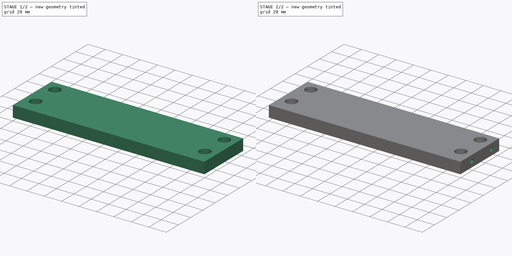
[diagram: build sequence overview — one tinted view per stage of 2, left to right]
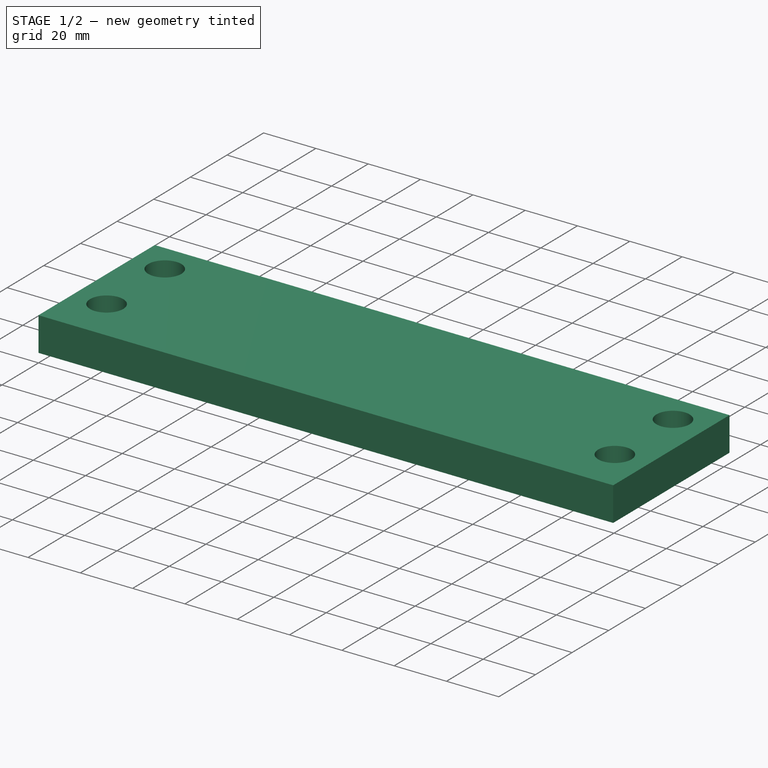
[diagram: stage 1 of 2 — iso view after this stage's code; geometry added in this stage tinted green]
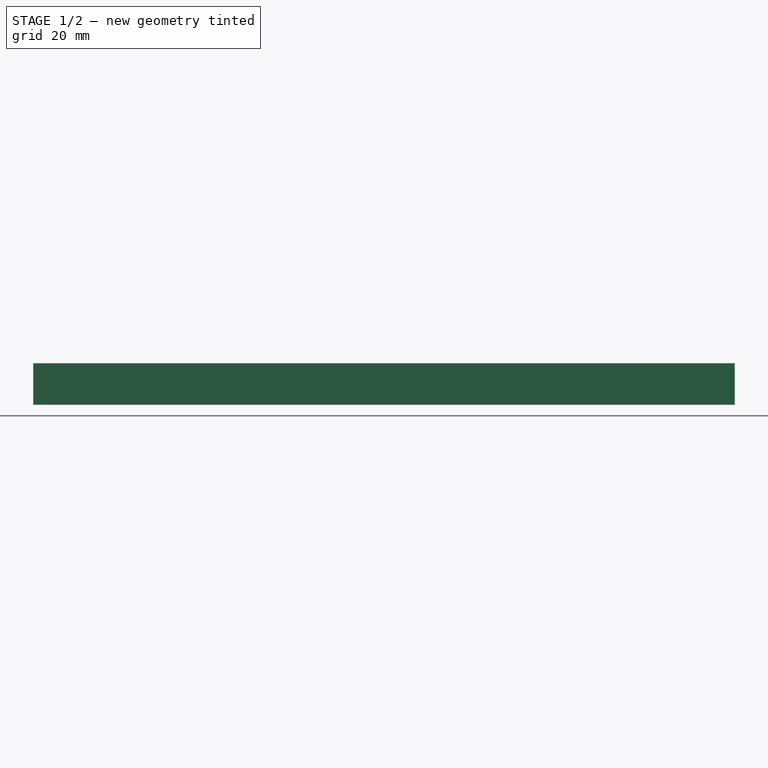
[diagram: stage 1 of 2 — front view after this stage's code; geometry added in this stage tinted green]
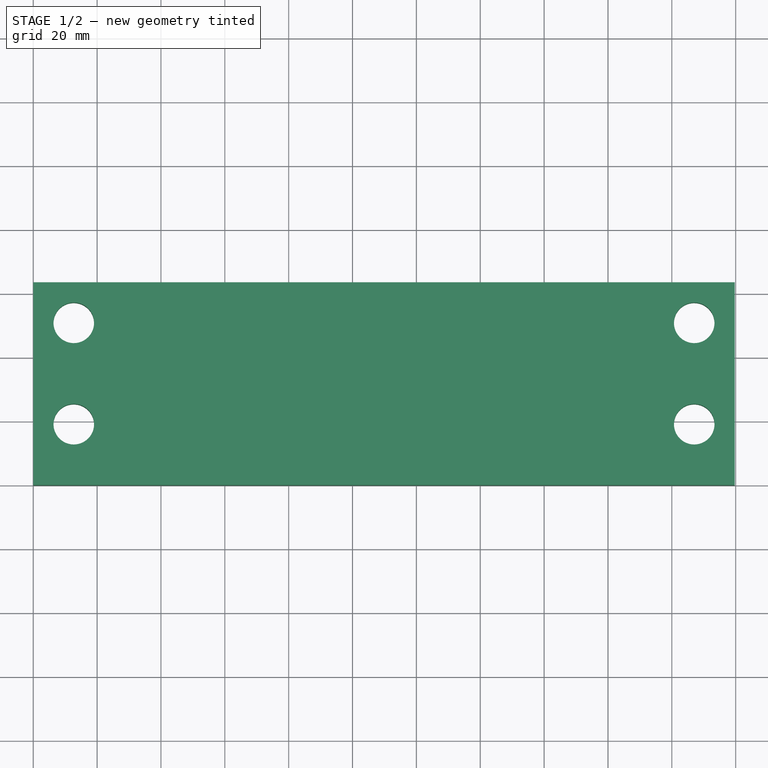
[diagram: stage 1 of 2 — top view after this stage's code; geometry added in this stage tinted green]
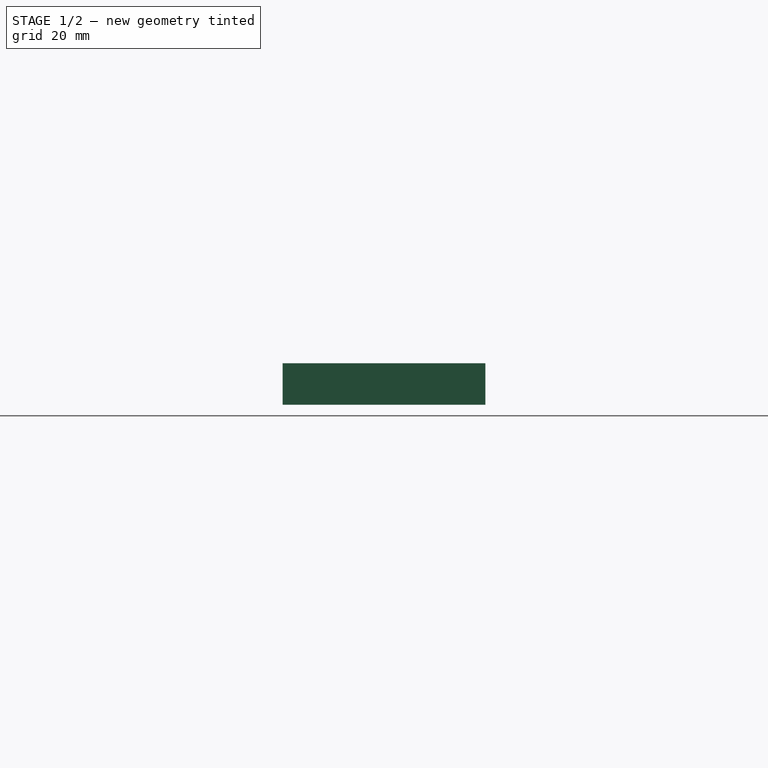
[diagram: stage 1 of 2 — right view after this stage's code; geometry added in this stage tinted green]
FCSTD DOCUMENT  (FreeCAD 0.16R6265 (Git))
Label: support
License: All rights reserved
LicenseURL: http://en.wikipedia.org/wiki/All_rights_reserved
objects: Sketcher::SketchObject×3, PartDesign::Pocket×2, PartDesign::Pad×1, Part::Part2DObjectPython×1
note: 10 computed .brp shape members not serialized (recipe doc carries the construction recipe); baked Part::Feature solids carry a one-line shape summary decoded from their .brp

FEATURE [Sketcher::SketchObject] Sketch
  sketch-geometry (8):
    g0: LineSegment StartX=0 StartY=0 StartZ=0 EndX=219.71 EndY=0 EndZ=0
    g1: LineSegment StartX=219.71 StartY=0 StartZ=0 EndX=219.71 EndY=63.5 EndZ=0
    g2: LineSegment StartX=219.71 StartY=63.5 StartZ=0 EndX=0 EndY=63.5 EndZ=0
    g3: LineSegment StartX=0 StartY=63.5 StartZ=0 EndX=0 EndY=0 EndZ=0
    g4: Circle CenterX=12.7 CenterY=19.05 CenterZ=0 NormalX=0 NormalY=0 NormalZ=1 Radius=6.35
    g5: Circle CenterX=12.7 CenterY=50.8 CenterZ=0 NormalX=0 NormalY=0 NormalZ=1 Radius=6.35
    g6: Circle CenterX=207.01 CenterY=50.8 CenterZ=0 NormalX=0 NormalY=0 NormalZ=1 Radius=6.35
    g7: Circle CenterX=207.01 CenterY=19.05 CenterZ=0 NormalX=0 NormalY=0 NormalZ=1 Radius=6.35
  constraints (23):
    c: Coincident(g0,g1)
    c: Coincident(g1,g2)
    c: Coincident(g2,g3)
    c: Coincident(g3,g0)
    c: Horizontal(g0)
    c: Horizontal(g2)
    c: Vertical(g1)
    c: Vertical(g3)
    c: Coincident(g0,g-1)
    c: DistanceX(g2) = -219.71
    c: DistanceY(g3) = -63.5
    c: Radius(g4) = 6.35
    c: Equal(g4,g5)
    c: Equal(g4,g6)
    c: Equal(g4,g7)
    c: DistanceX(g-1,g4) = 12.7
    c: DistanceY(g-1,g5) = 50.8
    c: DistanceY(g-1,g4) = 19.05
    c: DistanceX(g-1,g5) = 12.7
    c: DistanceX(g6,g1) = 12.7
    c: DistanceX(g7,g0) = 12.7
    c: DistanceY(g7,g0) = -19.05
    c: DistanceY(g6,g0) = -50.8
FEATURE [PartDesign::Pad] Pad
  Length = 13
  Length2 = 100
  Sketch = -> Sketch
  Type = 0
FEATURE [Sketcher::SketchObject] Sketch001
  Support = -> Pad [Face4]
  sketch-geometry (2):
    g0: Circle CenterX=-50.8 CenterY=6.5 CenterZ=0 NormalX=0 NormalY=0 NormalZ=1 Radius=2.54
    g1: Circle CenterX=-19.05 CenterY=6.5 CenterZ=0 NormalX=0 NormalY=0 NormalZ=1 Radius=2.54
  constraints (6):
    c: Radius(g0) = 2.54
    c: Equal(g0,g1)
    c: DistanceX(g-1,g1) = -19.05
    c: DistanceX(g-1,g0) = -50.8
    c: DistanceY(g-1,g1) = 6.5
    c: DistanceY(g-1,g0) = 6.5
FEATURE [PartDesign::Pocket] Pocket
  Length = 12.7
  Sketch = -> Sketch001
  Type = 0
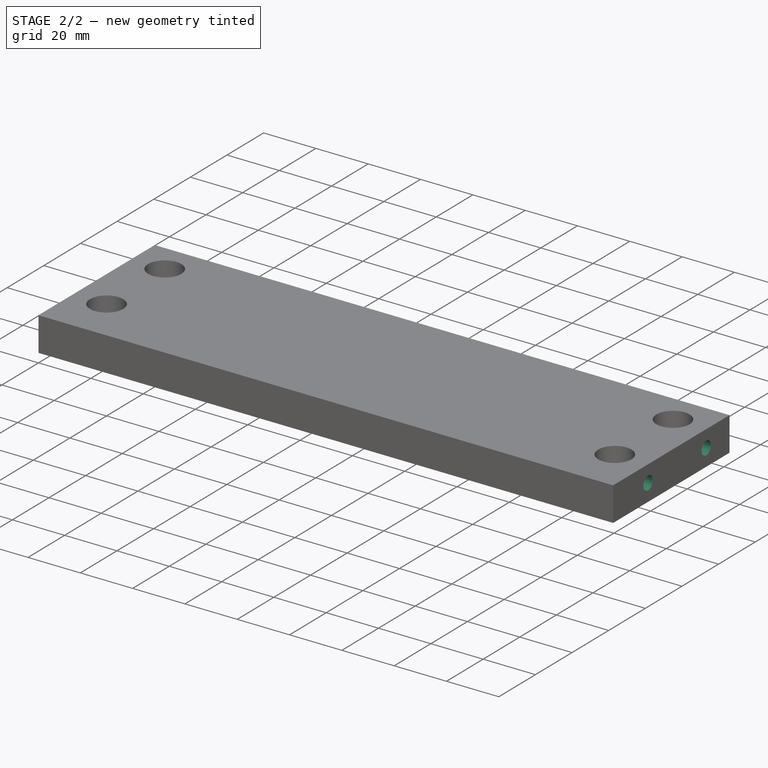
[diagram: stage 2 of 2 — iso view after this stage's code; geometry added in this stage tinted green]
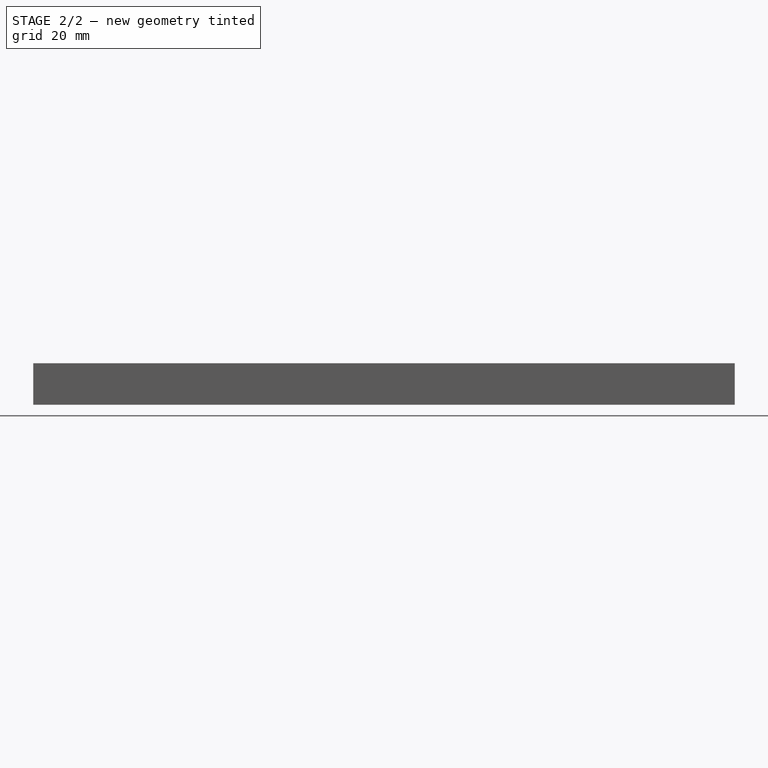
[diagram: stage 2 of 2 — front view after this stage's code; geometry added in this stage tinted green]
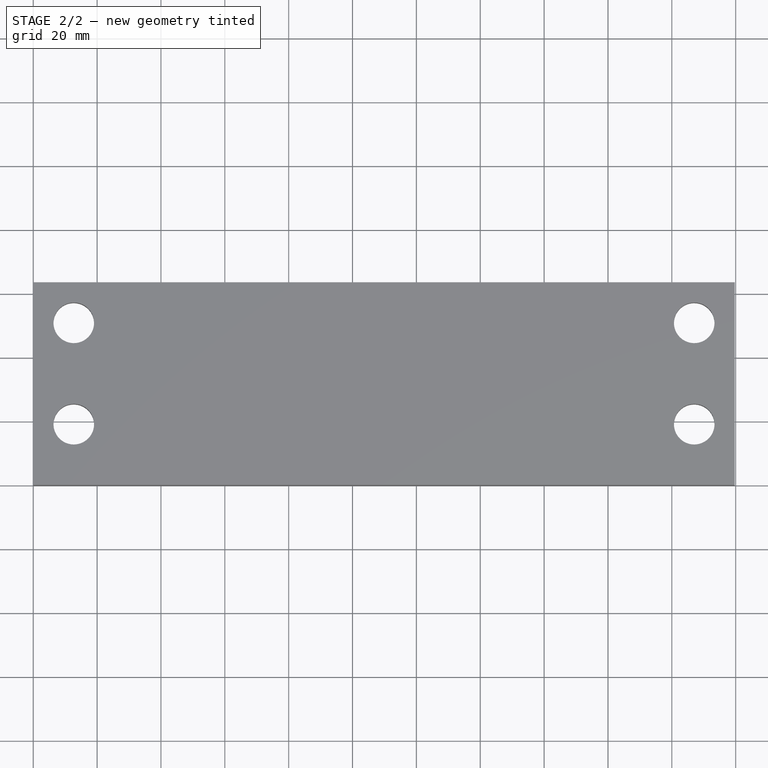
[diagram: stage 2 of 2 — top view after this stage's code; geometry added in this stage tinted green]
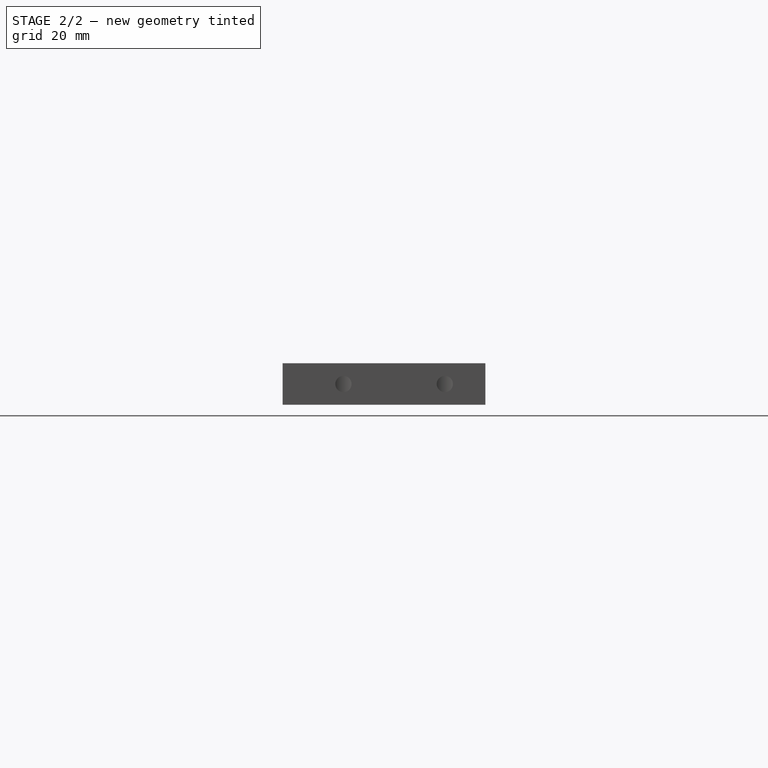
[diagram: stage 2 of 2 — right view after this stage's code; geometry added in this stage tinted green]
FEATURE [Sketcher::SketchObject] Sketch002
  Support = -> Pocket [Face3]
  sketch-geometry (2):
    g0: Circle CenterX=19.05 CenterY=6.5 CenterZ=0 NormalX=0 NormalY=0 NormalZ=1 Radius=2.54
    g1: Circle CenterX=50.8 CenterY=6.5 CenterZ=0 NormalX=0 NormalY=0 NormalZ=1 Radius=2.54
  constraints (6):
    c: Radius(g1) = 2.54
    c: Equal(g1,g0)
    c: DistanceX(g-1,g0) = 19.05
    c: DistanceX(g-1,g1) = 50.8
    c: DistanceY(g-1,g0) = 6.5
    c: DistanceY(g-1,g1) = 6.5
FEATURE [PartDesign::Pocket] Pocket001
  Length = 12.7
  Sketch = -> Sketch002
  Type = 0
FEATURE [Part::Part2DObjectPython] Shape2DView  # Draft 2D object (typed FeaturePython)
  Base = -> Pocket001
  HiddenLines = false
  Projection = (0,0,1)
  ProjectionMode = 0
  SegmentLength = 0.05
  Tessellation = false
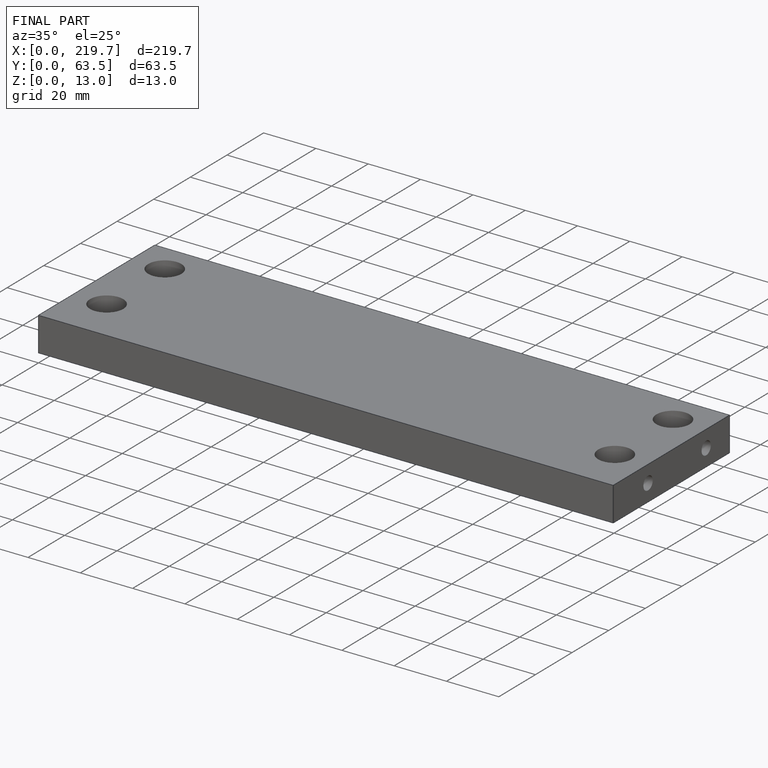
[diagram: finished part — iso view with bounding-box wireframe]
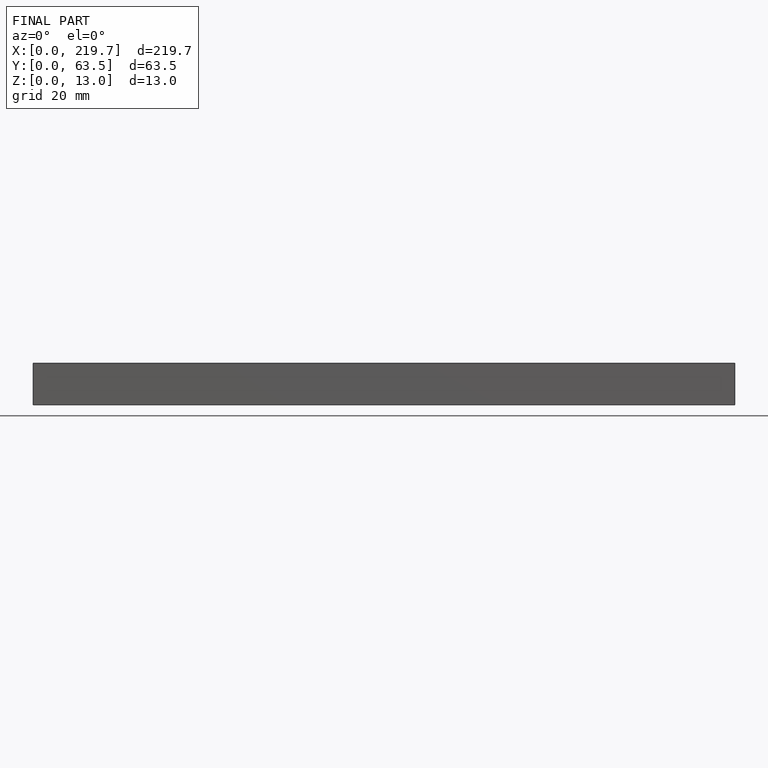
[diagram: finished part — front view with bounding-box wireframe]
